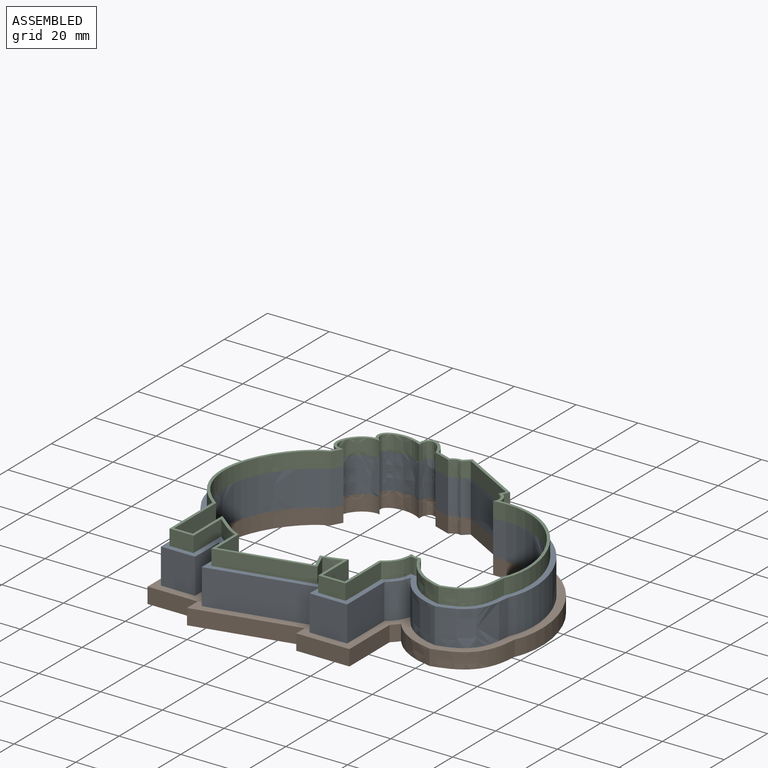
[diagram: assembled view]
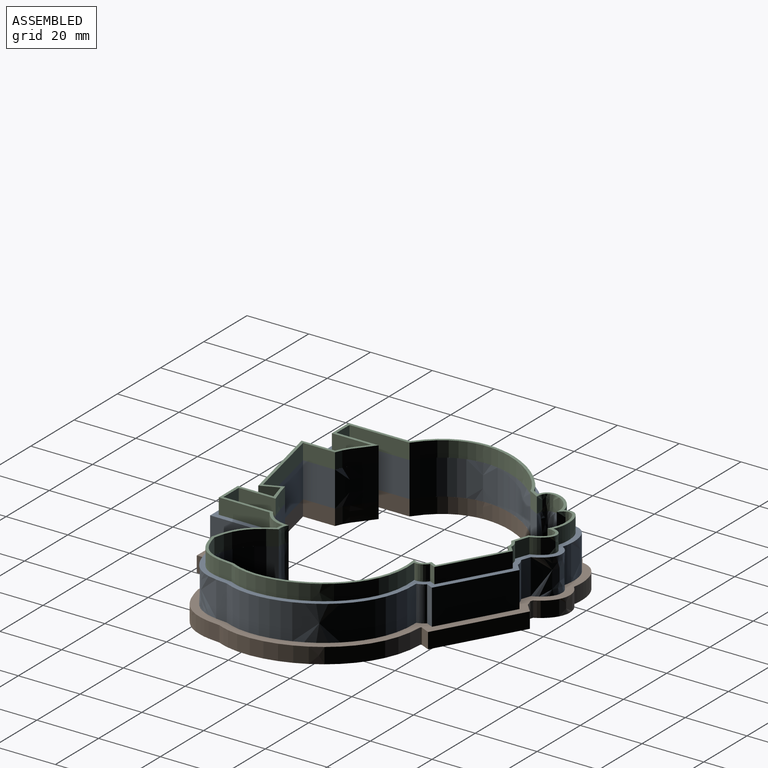
[diagram: assembled view, second angle]
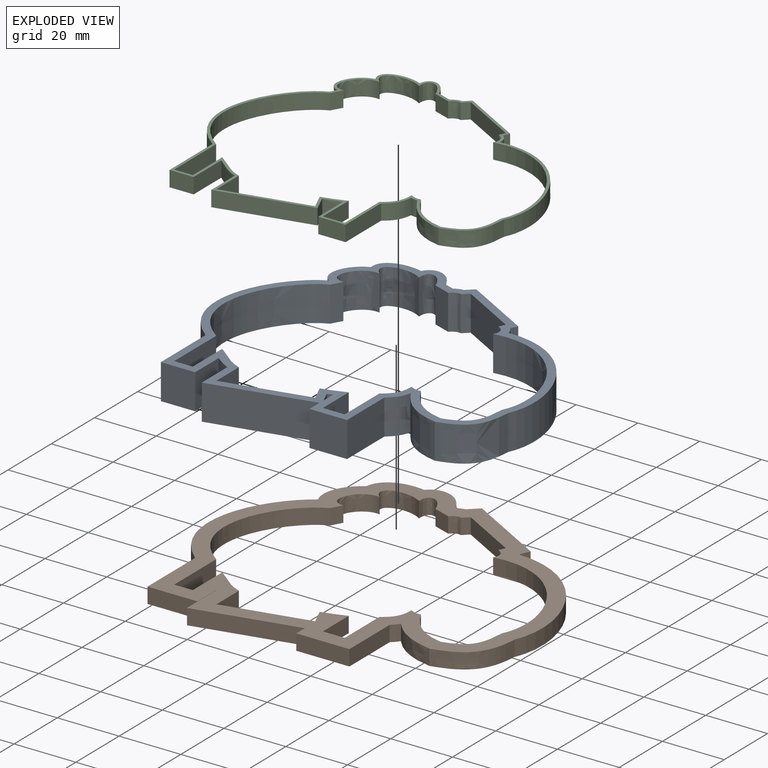
[diagram: exploded view]
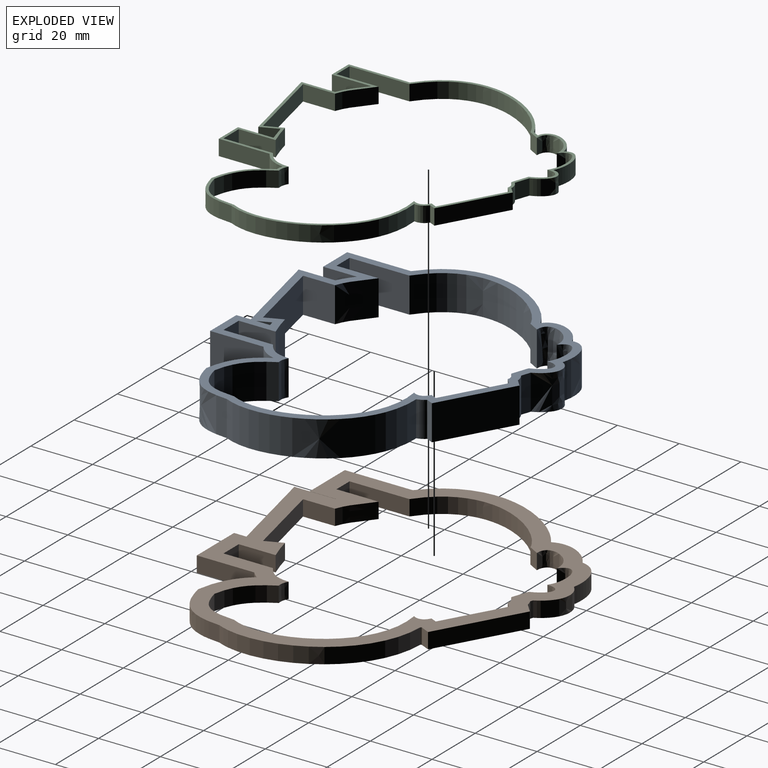
[diagram: exploded view, second angle]
ASSEMBLY  parts=3 mates=2
PART A: 55 faces, bbox 108.4x94x12.2 mm
  f0: plane 108.41x94.02mm, normal (0,0,1), area 995.8mm2, adj f2,f3,f4,f5,f6,f7,f8,f9
  f1: plane 108.41x94.02mm, normal (0,0,-1), area 995.8mm2, adj f2,f3,f4,f5,f6,f7,f8,f9
  f2: plane 11.43x4.46mm, normal (-1,0,0), area 51mm2, adj f0,f1,f11,f12
  f3: extruded ~13.32x11.43mm, area 192.6mm2, adj f0,f1,f4,f27
  f4: extruded ~46.87x16.98mm, area 644.7mm2, adj f0,f1,f3,f5
  f5: plane 20.68x11.43mm, normal (-1,0,0), area 236.3mm2, adj f0,f1,f4,f6
  f6: plane 11.43x11.11mm, normal (0,-1,0), area 127mm2, adj f0,f1,f5,f7
  f7: plane 11.43x10.92mm, normal (1,0,0), area 124.8mm2, adj f0,f1,f6,f8
  f8: extruded ~11.43x5.15mm, area 70.7mm2, adj f0,f1,f7,f9
  f9: plane 11.85x11.43mm, normal (-1,0,0), area 135.4mm2, adj f0,f1,f8,f10
  f10: plane 32.92x11.43mm, normal (0.22,-0.97,0), area 386mm2, adj f0,f1,f9,f13
  f11: plane 11.43x3.99mm, normal (0.92,0.39,0), area 49.7mm2, adj f0,f1,f2,f12
  f12: extruded ~11.43x1.71mm, area 20.3mm2, adj f0,f1,f2,f11
  f13: plane 11.43x4.65mm, normal (-1,0,0), area 53.1mm2, adj f0,f1,f10,f14
  f14: plane 12.15x11.43mm, normal (0,-1,0), area 138.9mm2, adj f0,f1,f13,f15
  f15: plane 17.27x11.43mm, normal (1,0,0), area 197.4mm2, adj f0,f1,f14,f16
  f16: extruded ~11.43x6.21mm, area 87.7mm2, adj f0,f1,f15,f17
  f17: extruded ~15.43x11.43mm, area 224.3mm2, adj f0,f1,f16,f18
  f18: extruded ~15.63x12.84mm, area 255.7mm2, adj f0,f1,f17,f19
  f19: extruded ~41.26x30.66mm, area 672.5mm2, adj f0,f1,f18,f20
  f20: extruded ~11.43x2.58mm, area 33.7mm2, adj f0,f1,f19,f21
  f21: plane 11.43x2.27mm, normal (0.91,-0.42,0), area 28.5mm2, adj f0,f1,f20,f22
  f22: plane 22.44x12.66mm, normal (0.49,0.87,0), area 294.5mm2, adj f0,f1,f21,f23
  f23: plane 11.43x2.43mm, normal (-0.68,0.74,0), area 37.7mm2, adj f0,f1,f22,f24
  f24: extruded ~11.43x2.95mm, area 36mm2, adj f0,f1,f23,f25
  f25: plane 11.43x2.96mm, normal (0.33,0.95,0), area 35.8mm2, adj f0,f1,f24,f26
  f26: extruded ~11.43x10.24mm, area 157.8mm2, adj f0,f1,f25,f27
  f27: extruded ~12.37x11.43mm, area 182.5mm2, adj f0,f1,f3,f26
  f28: extruded ~11.43x9.92mm, area 195.8mm2, adj f0,f1,f29,f54
  f29: plane 11.43x3.43mm, normal (0.87,-0.49,0), area 44.9mm2, adj f0,f1,f28,f30
  f30: extruded ~43.63x16.29mm, area 609mm2, adj f0,f1,f29,f31
  f31: plane 19.41x11.43mm, normal (1,0,0), area 221.9mm2, adj f0,f1,f30,f32
  f32: plane 11.43x6.03mm, normal (0,1,0), area 69mm2, adj f0,f1,f31,f33
  f33: plane 13.64x11.43mm, normal (-1,0,0), area 155.9mm2, adj f0,f1,f32,f34
  f34: extruded ~11.43x10.23mm, area 142.1mm2, adj f0,f1,f33,f35
  f35: plane 11.43x10.36mm, normal (1,0,0), area 118.4mm2, adj f0,f1,f34,f36
  f36: plane 27.54x11.43mm, normal (-0.22,0.97,0), area 322.9mm2, adj f0,f1,f35,f37
  f37: plane 11.43x5.51mm, normal (-0.92,-0.39,0), area 68.5mm2, adj f0,f1,f36,f38
  f38: extruded ~11.43x7.74mm, area 92.6mm2, adj f0,f1,f37,f39
  f39: plane 11.93x11.43mm, normal (1,0,0), area 136.4mm2, adj f0,f1,f38,f40
  f40: plane 11.43x7.07mm, normal (0,1,0), area 80.8mm2, adj f0,f1,f39,f41
  f41: plane 16.03x11.43mm, normal (-1,0,0), area 183.2mm2, adj f0,f1,f40,f42
  f42: extruded ~11.43x8.32mm, area 114.5mm2, adj f0,f1,f41,f43
  f43: extruded ~11.43x3.52mm, area 42.1mm2, adj f0,f1,f42,f44
  f44: extruded ~14x11.43mm, area 212.1mm2, adj f0,f1,f43,f45
  f45: extruded ~13.69x11.43mm, area 218.4mm2, adj f0,f1,f44,f46
  f46: extruded ~38.07x31.16mm, area 654.5mm2, adj f0,f1,f45,f47
  f47: extruded ~11.43x4.6mm, area 64.4mm2, adj f0,f1,f46,f48
  f48: plane 11.43x2.03mm, normal (-0.91,0.42,0), area 25.5mm2, adj f0,f1,f47,f49
  f49: plane 18.79x11.43mm, normal (-0.49,-0.87,0), area 246.7mm2, adj f0,f1,f48,f50
  f50: plane 11.43x1.95mm, normal (0.68,-0.74,0), area 30.3mm2, adj f0,f1,f49,f51
  f51: extruded ~11.43x3.28mm, area 42.1mm2, adj f0,f1,f50,f52
  f52: plane 11.43x5.4mm, normal (-0.33,-0.95,0), area 65.3mm2, adj f0,f1,f51,f53
  f53: extruded ~11.43x6.45mm, area 134mm2, adj f0,f1,f52,f54
  f54: extruded ~11.7x11.43mm, area 191.1mm2, adj f0,f1,f28,f53
PART B: 52 faces, bbox 111.9x100.1x6.2 mm
  f0: plane 111.91x100.09mm, normal (0,0,1), area 1977.5mm2, adj f2,f3,f4,f5,f6,f7,f8,f9
  f1: plane 111.91x100.09mm, normal (0,0,-1), area 1977.5mm2, adj f2,f3,f4,f5,f6,f7,f8,f9
  f2: extruded ~14.19x6.6mm, area 85.2mm2, adj f0,f1,f3,f24
  f3: extruded ~48.79x15.63mm, area 290mm2, adj f0,f1,f2,f4
  f4: plane 22x5.08mm, normal (-1,0,0), area 111.8mm2, adj f0,f1,f3,f5
  f5: plane 16.19x5.08mm, normal (0,-1,0), area 82.3mm2, adj f0,f1,f4,f6
  f6: plane 8.56x5.08mm, normal (1,0,0), area 43.5mm2, adj f0,f1,f5,f7
  f7: extruded ~5.08x0.07mm, area 0.4mm2, adj f0,f1,f6,f8
  f8: plane 13.49x5.08mm, normal (-1,0,0), area 68.5mm2, adj f0,f1,f7,f9
  f9: plane 32.92x7.52mm, normal (0.22,-0.97,0), area 171.5mm2, adj f0,f1,f8,f10
  f10: plane 5.08x4mm, normal (-1,0,0), area 20.3mm2, adj f0,f1,f9,f11
  f11: plane 17.23x5.08mm, normal (0,-1,0), area 87.5mm2, adj f0,f1,f10,f12
  f12: plane 18.6x5.08mm, normal (1,0,0), area 94.5mm2, adj f0,f1,f11,f13
  f13: extruded ~5.08x2.27mm, area 15.7mm2, adj f0,f1,f12,f14
  f14: extruded ~15.07x8.42mm, area 89.7mm2, adj f0,f1,f13,f15
  f15: extruded ~17.59x15.29mm, area 130.7mm2, adj f0,f1,f14,f16
  f16: extruded ~44.44x31.44mm, area 313.4mm2, adj f0,f1,f15,f17
  f17: extruded ~5.08x0.32mm, area 1.9mm2, adj f0,f1,f16,f18
  f18: plane 5.08x3.04mm, normal (0.91,-0.42,0), area 17mm2, adj f0,f1,f17,f19
  f19: plane 26.09x14.72mm, normal (0.49,0.87,0), area 152.2mm2, adj f0,f1,f18,f20
  f20: plane 5.08x3.17mm, normal (-0.68,0.74,0), area 21.9mm2, adj f0,f1,f19,f21
  f21: extruded ~5.08x2.08mm, area 11.1mm2, adj f0,f1,f20,f22
  f22: plane 5.08x0.9mm, normal (0.33,0.95,0), area 4.8mm2, adj f0,f1,f21,f23
  f23: extruded ~13.15x6.12mm, area 82.8mm2, adj f0,f1,f22,f24
  f24: extruded ~13.79x7.16mm, area 87.6mm2, adj f0,f1,f2,f23
  f25: extruded ~9.92x8.29mm, area 87mm2, adj f0,f1,f26,f51
  f26: plane 5.08x3.43mm, normal (0.87,-0.49,0), area 20mm2, adj f0,f1,f25,f27
  f27: extruded ~43.63x16.29mm, area 270.7mm2, adj f0,f1,f26,f28
  f28: plane 19.41x5.08mm, normal (1,0,0), area 98.6mm2, adj f0,f1,f27,f29
  f29: plane 6.03x5.08mm, normal (0,1,0), area 30.6mm2, adj f0,f1,f28,f30
  f30: plane 13.64x5.08mm, normal (-1,0,0), area 69.3mm2, adj f0,f1,f29,f31
  f31: extruded ~10.23x6.95mm, area 63.2mm2, adj f0,f1,f30,f32
  f32: plane 10.36x5.08mm, normal (1,0,0), area 52.6mm2, adj f0,f1,f31,f33
  f33: plane 27.54x6.3mm, normal (-0.22,0.97,0), area 143.5mm2, adj f0,f1,f32,f34
  f34: plane 5.51x5.08mm, normal (-0.92,-0.39,0), area 30.4mm2, adj f0,f1,f33,f35
  f35: extruded ~7.74x5.08mm, area 41.1mm2, adj f0,f1,f34,f36
  f36: plane 11.93x5.08mm, normal (1,0,0), area 60.6mm2, adj f0,f1,f35,f37
  f37: plane 7.07x5.08mm, normal (0,1,0), area 35.9mm2, adj f0,f1,f36,f38
  f38: plane 16.03x5.08mm, normal (-1,0,0), area 81.4mm2, adj f0,f1,f37,f39
  f39: extruded ~8.32x5.08mm, area 50.9mm2, adj f0,f1,f38,f40
  f40: extruded ~5.08x3.52mm, area 18.7mm2, adj f0,f1,f39,f41
  f41: extruded ~14x11.04mm, area 94.3mm2, adj f0,f1,f40,f42
  f42: extruded ~13.69x10.39mm, area 97.1mm2, adj f0,f1,f41,f43
  f43: extruded ~38.07x31.16mm, area 290.9mm2, adj f0,f1,f42,f44
  f44: extruded ~5.08x4.6mm, area 28.6mm2, adj f0,f1,f43,f45
  f45: plane 5.08x2.03mm, normal (-0.91,0.42,0), area 11.3mm2, adj f0,f1,f44,f46
  f46: plane 18.79x10.61mm, normal (-0.49,-0.87,0), area 109.6mm2, adj f0,f1,f45,f47
  f47: plane 5.08x1.95mm, normal (0.68,-0.74,0), area 13.5mm2, adj f0,f1,f46,f48
  f48: extruded ~5.08x3.28mm, area 18.7mm2, adj f0,f1,f47,f49
  f49: plane 5.4x5.08mm, normal (-0.33,-0.95,0), area 29mm2, adj f0,f1,f48,f50
  f50: extruded ~6.45x5.12mm, area 59.5mm2, adj f0,f1,f49,f51
  f51: extruded ~11.7x5.68mm, area 85mm2, adj f0,f1,f25,f50
PART C: 56 faces, bbox 108x89.9x5.5 mm
  f0: plane 108.01x89.89mm, normal (0,0,1), area 347.7mm2, adj f2,f3,f4,f5,f6,f7,f8,f9
  f1: plane 108.01x89.89mm, normal (0,0,-1), area 347.7mm2, adj f2,f3,f4,f5,f6,f7,f8,f9
  f2: extruded ~11.46x7.17mm, area 83.7mm2, adj f0,f1,f3,f28
  f3: plane 5.08x2.01mm, normal (-0.87,0.49,0), area 11.7mm2, adj f0,f1,f2,f4
  f4: extruded ~44.79x16.55mm, area 276.4mm2, adj f0,f1,f3,f5
  f5: plane 19.85x5.08mm, normal (-1,0,0), area 100.8mm2, adj f0,f1,f4,f6
  f6: plane 7.81x5.08mm, normal (0,-1,0), area 39.7mm2, adj f0,f1,f5,f7
  f7: plane 12.77x5.08mm, normal (1,0,0), area 64.9mm2, adj f0,f1,f6,f8
  f8: extruded ~8.45x5.81mm, area 52.4mm2, adj f0,f1,f7,f9
  f9: plane 10.86x5.08mm, normal (-1,0,0), area 55.2mm2, adj f0,f1,f8,f10
  f10: plane 29.67x6.78mm, normal (0.22,-0.97,0), area 154.6mm2, adj f0,f1,f9,f11
  f11: plane 5.56x5.08mm, normal (0.92,0.39,0), area 30.7mm2, adj f0,f1,f10,f12
  f12: extruded ~5.64x5.08mm, area 29.8mm2, adj f0,f1,f11,f13
  f13: plane 11.52x5.08mm, normal (-1,0,0), area 58.5mm2, adj f0,f1,f12,f14
  f14: plane 8.85x5.08mm, normal (0,-1,0), area 44.9mm2, adj f0,f1,f13,f15
  f15: plane 16.46x5.08mm, normal (1,0,0), area 83.6mm2, adj f0,f1,f14,f16
  f16: extruded ~7.41x5.08mm, area 45.9mm2, adj f0,f1,f15,f17
  f17: extruded ~5.08x2.23mm, area 11.5mm2, adj f0,f1,f16,f18
  f18: extruded ~14.51x11.01mm, area 96.2mm2, adj f0,f1,f17,f19
  f19: extruded ~14.37x11.24mm, area 102.9mm2, adj f0,f1,f18,f20
  f20: extruded ~39.19x30.64mm, area 291.9mm2, adj f0,f1,f19,f21
  f21: extruded ~5.08x3.91mm, area 23.1mm2, adj f0,f1,f20,f22
  f22: plane 5.08x2.02mm, normal (0.91,-0.42,0), area 11.3mm2, adj f0,f1,f21,f23
  f23: plane 20.07x11.33mm, normal (0.49,0.87,0), area 117.1mm2, adj f0,f1,f22,f24
  f24: plane 5.08x2.06mm, normal (-0.68,0.74,0), area 14.2mm2, adj f0,f1,f23,f25
  f25: extruded ~5.08x3.27mm, area 18.1mm2, adj f0,f1,f24,f26
  f26: plane 5.08x4.49mm, normal (0.33,0.95,0), area 24.1mm2, adj f0,f1,f25,f27
  f27: extruded ~7.95x5.3mm, area 62.4mm2, adj f0,f1,f26,f28
  f28: extruded ~11.78x5.67mm, area 80.1mm2, adj f0,f1,f2,f27
  f29: extruded ~9.92x8.29mm, area 87mm2, adj f0,f1,f30,f55
  f30: plane 5.08x3.43mm, normal (0.87,-0.49,0), area 20mm2, adj f0,f1,f29,f31
  f31: extruded ~43.63x16.29mm, area 270.7mm2, adj f0,f1,f30,f32
  f32: plane 19.41x5.08mm, normal (1,0,0), area 98.6mm2, adj f0,f1,f31,f33
  f33: plane 6.03x5.08mm, normal (0,1,0), area 30.6mm2, adj f0,f1,f32,f34
  f34: plane 13.64x5.08mm, normal (-1,0,0), area 69.3mm2, adj f0,f1,f33,f35
  f35: extruded ~10.23x6.95mm, area 63.2mm2, adj f0,f1,f34,f36
  f36: plane 10.36x5.08mm, normal (1,0,0), area 52.6mm2, adj f0,f1,f35,f37
  f37: plane 27.54x6.3mm, normal (-0.22,0.97,0), area 143.5mm2, adj f0,f1,f36,f38
  f38: plane 5.51x5.08mm, normal (-0.92,-0.39,0), area 30.4mm2, adj f0,f1,f37,f39
  f39: extruded ~7.74x5.08mm, area 41.1mm2, adj f0,f1,f38,f40
  f40: plane 11.93x5.08mm, normal (1,0,0), area 60.6mm2, adj f0,f1,f39,f41
  f41: plane 7.07x5.08mm, normal (0,1,0), area 35.9mm2, adj f0,f1,f40,f42
  f42: plane 16.03x5.08mm, normal (-1,0,0), area 81.4mm2, adj f0,f1,f41,f43
  f43: extruded ~8.32x5.08mm, area 50.9mm2, adj f0,f1,f42,f44
  f44: extruded ~5.08x3.52mm, area 18.7mm2, adj f0,f1,f43,f45
  f45: extruded ~14x11.04mm, area 94.3mm2, adj f0,f1,f44,f46
  f46: extruded ~13.69x10.39mm, area 97.1mm2, adj f0,f1,f45,f47
  f47: extruded ~38.07x31.16mm, area 290.9mm2, adj f0,f1,f46,f48
  f48: extruded ~5.08x4.6mm, area 28.6mm2, adj f0,f1,f47,f49
  f49: plane 5.08x2.03mm, normal (-0.91,0.42,0), area 11.3mm2, adj f0,f1,f48,f50
  f50: plane 18.79x10.61mm, normal (-0.49,-0.87,0), area 109.6mm2, adj f0,f1,f49,f51
  f51: plane 5.08x1.95mm, normal (0.68,-0.74,0), area 13.5mm2, adj f0,f1,f50,f52
  f52: extruded ~5.08x3.28mm, area 18.7mm2, adj f0,f1,f51,f53
  f53: plane 5.4x5.08mm, normal (-0.33,-0.95,0), area 29mm2, adj f0,f1,f52,f54
  f54: extruded ~6.45x5.12mm, area 59.5mm2, adj f0,f1,f53,f55
  f55: extruded ~11.7x5.68mm, area 85mm2, adj f0,f1,f29,f54
PLACE A t=(224.45,-9.93,5.08)mm
PLACE B at identity
PLACE C t=(103.37,-8.05,16.51)mm
MATE fastened A.f1 <-> B.f0  axis (0,0,1) through (115.19,22.81,5.08)mm
MATE fastened C.f1 <-> A.f0  axis (0,0,1) through (115.19,22.81,16.51)mm
